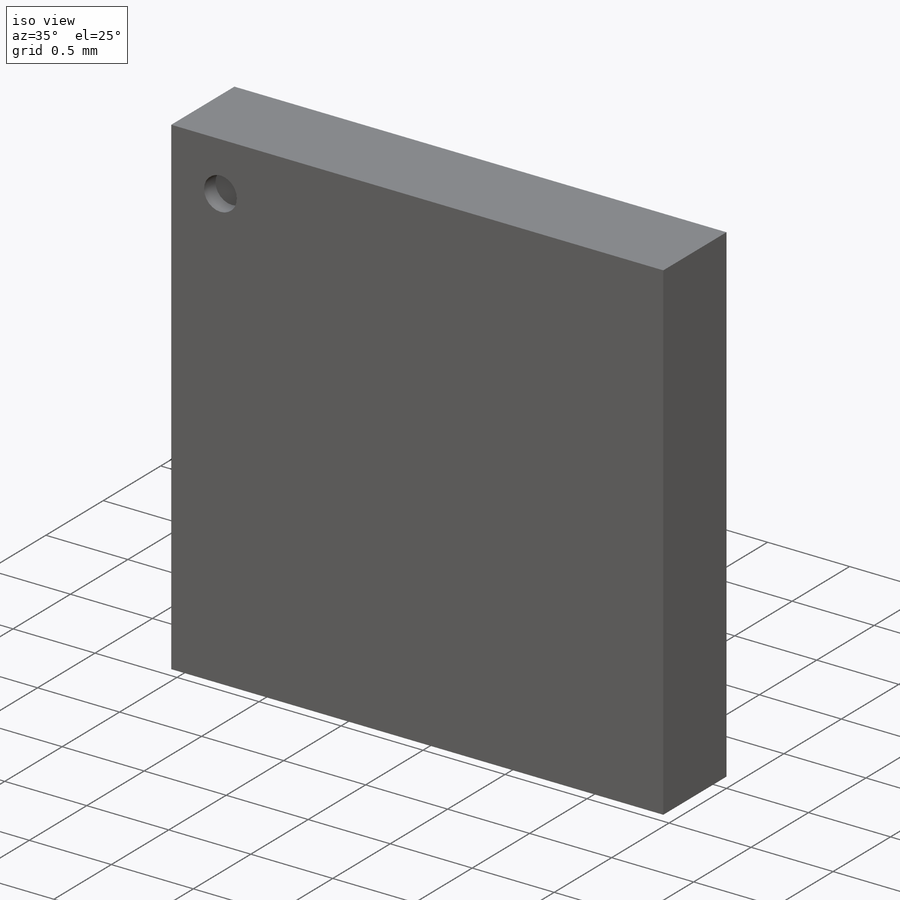
[diagram: iso view]
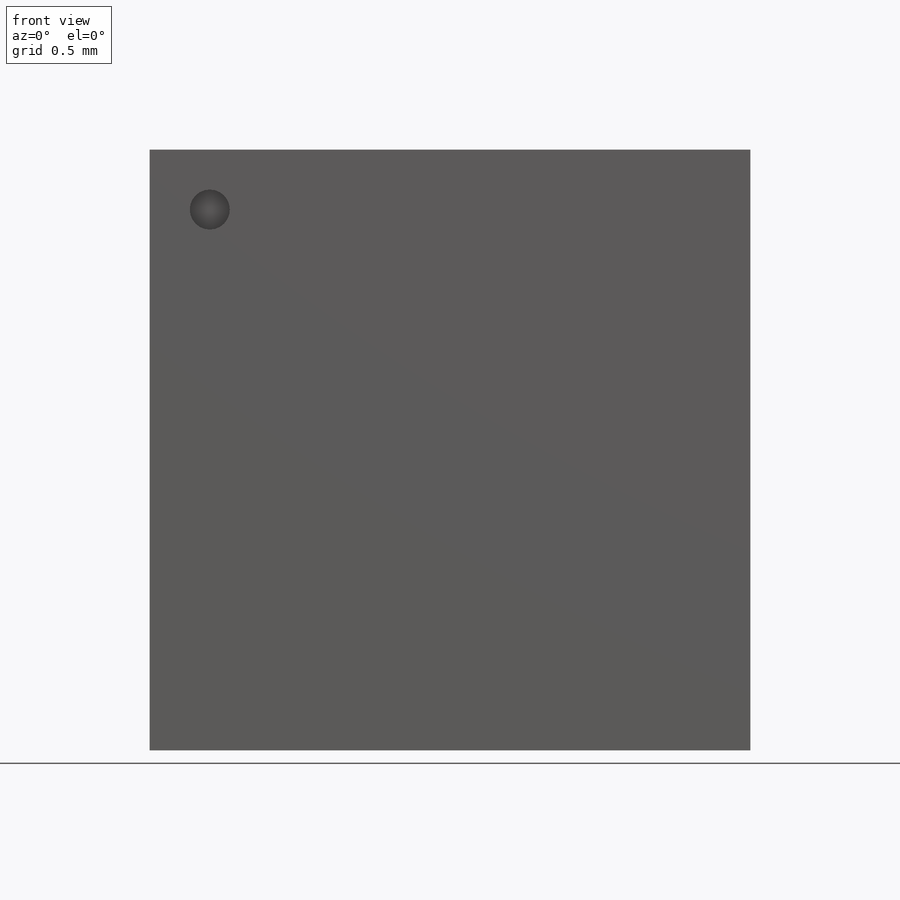
[diagram: front view]
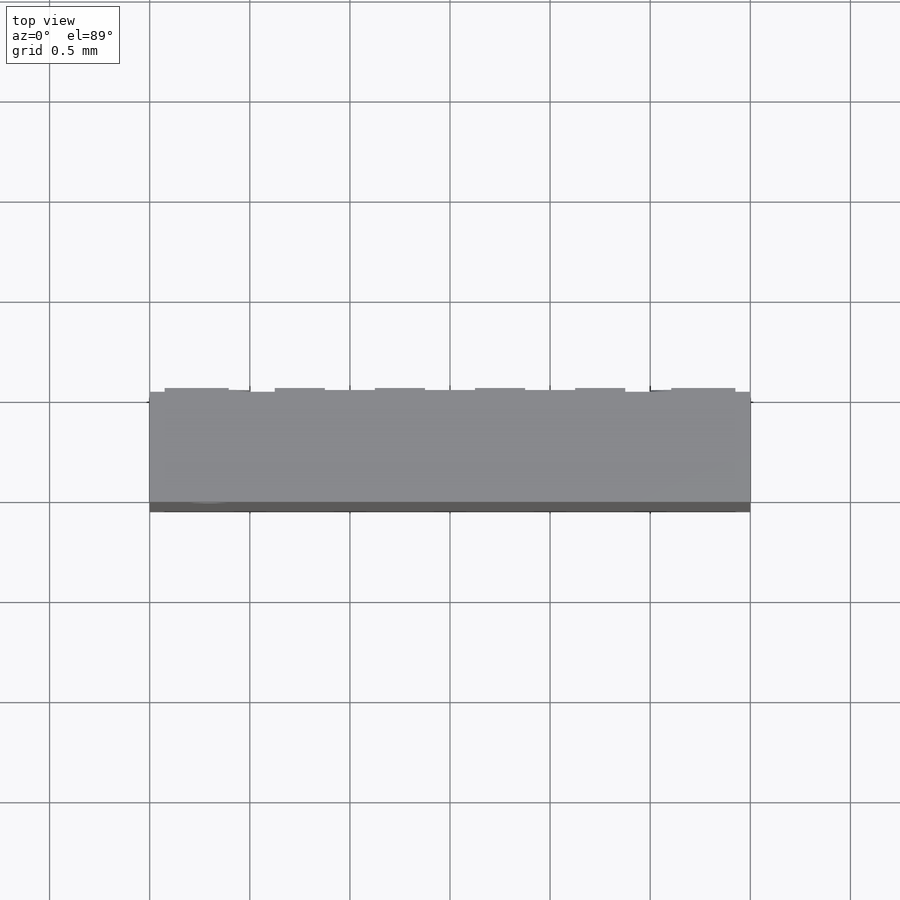
[diagram: top view]
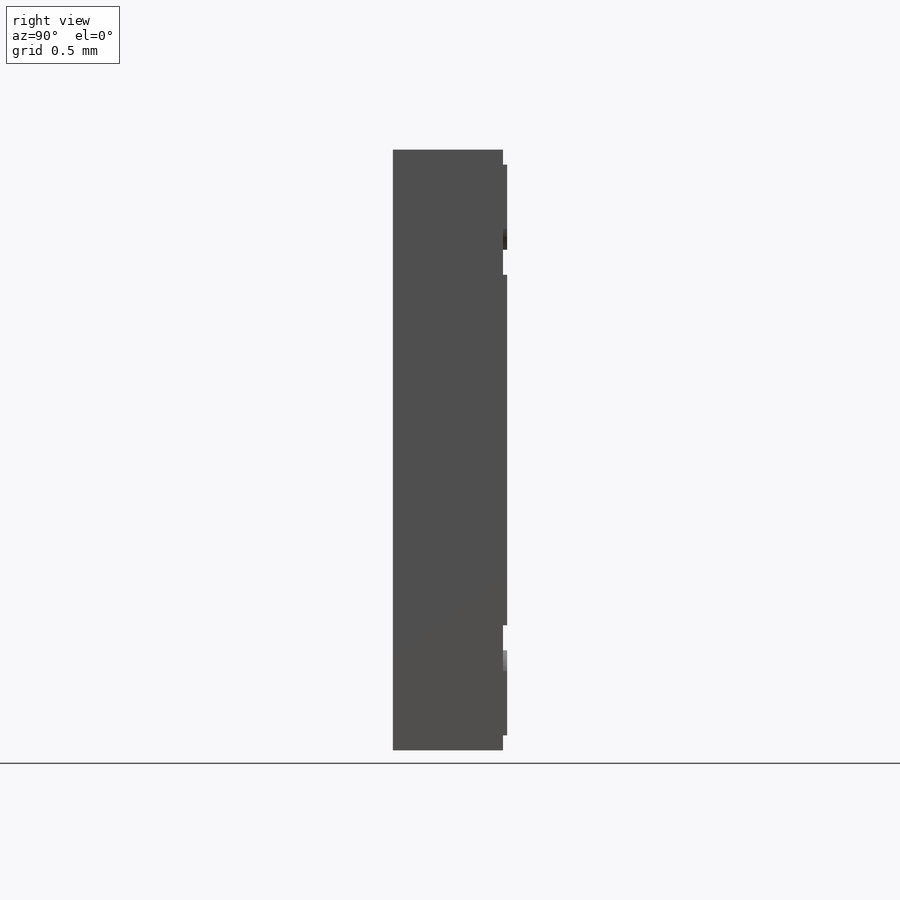
[diagram: right view]
SOLIDWORKS PART (.sldprt)
format: sldprt  version: not decoded by parser v0  size: 265,216 bytes
history: native  units: mm
features: sketch x3, extrude x2, material x1, cut_extrude x1 (+13 scaffold rows collapsed)
feature tree (20):
  scaffold x13  (default folders/planes/origin — collapsed)
  material  "Material <not specified>"
  sketch  "Sketch1"  dims[D1=3.0mm D2=3.0mm]
  extrude  "Boss-Extrude1"  Depth=0.55mm
  sketch  "Sketch2"  dims[D3=0.2mm D1=0.3mm D2=0.3mm]
  cut_extrude  "Cut-Extrude1"  Depth=0.1mm
  sketch  "Sketch3"  dims[c1.D11=0.125mm c1.D1=0.32mm c1.D2=0.32mm c1.D3=1.265mm c1.D4=1.265mm c1.D7=1.7mm c1.D8=~0.424793mm c2.D8=135.0deg c2.D7=1.7mm c2.D9=1.5mm c2.D10=0.25mm c2.D11=0.4mm c2.D12=0.1mm c2.D13=0.75mm c2.D14=~0.282425mm c2.D5=2.0 c2.D6=2.0 c2.D15=4.0 c2.D16=4.0]
  extrude  "Boss-Extrude2"  Depth=0.02mm
decode coverage: 6 of 6 modeling features carry decoded parameters
note: ~ marks probable driven/reference dimensions
note: suppression state not decoded; provenance and decode notes live in map.json
